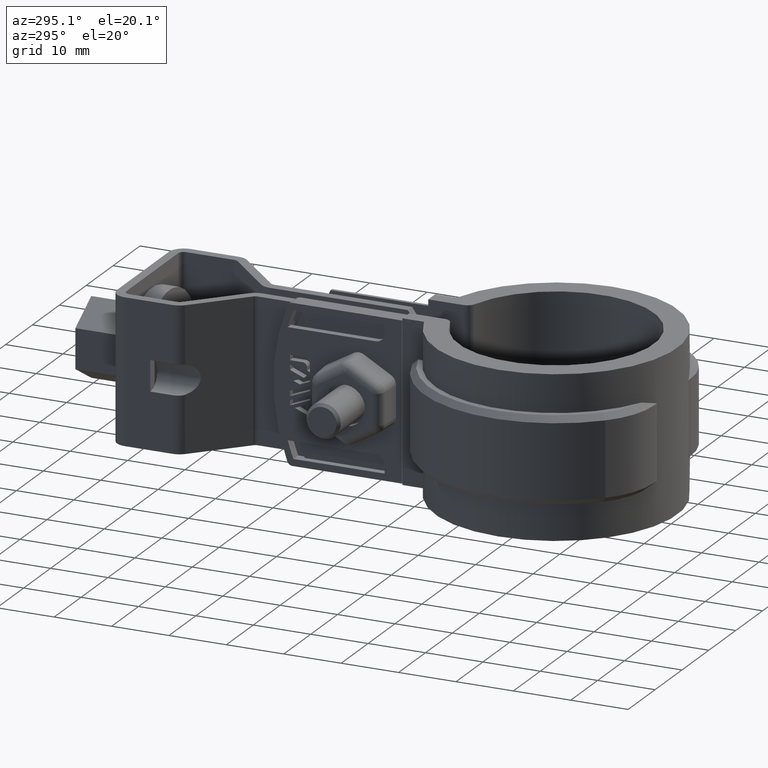
[diagram: clean part render]
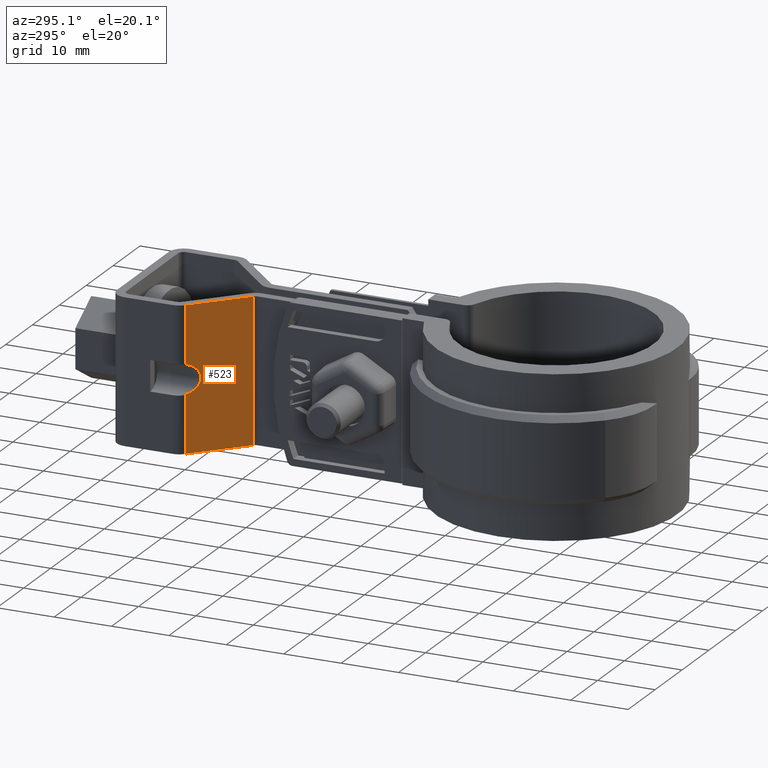
[diagram: same view with one face highlighted and labeled with its STEP entity id]
A machine part, auxiliary view. The second image highlights one B-rep face of the part: STEP entity #523.
In plain terms, the highlighted planar face has unit normal (-0.6983, -0.7158, -0).
Its self-contained STEP definition (entity closure, byte-faithful):
#523 = ADVANCED_FACE( '', ( #1030 ), #1031, .T. );
#1030 = FACE_OUTER_BOUND( '', #2123, .T. );
#1031 = PLANE( '', #2124 );
#2123 = EDGE_LOOP( '', ( #4726, #4727, #4728, #4729, #4730, #4731 ) );
#2124 = AXIS2_PLACEMENT_3D( '', #4732, #4733, #4734 );
#4726 = ORIENTED_EDGE( '', *, *, #6594, .F. );
#4727 = ORIENTED_EDGE( '', *, *, #6549, .T. );
#4728 = ORIENTED_EDGE( '', *, *, #6498, .T. );
#4729 = ORIENTED_EDGE( '', *, *, #6579, .T. );
#4730 = ORIENTED_EDGE( '', *, *, #6569, .F. );
#4731 = ORIENTED_EDGE( '', *, *, #6603, .T. );
#4732 = CARTESIAN_POINT( '', ( -3.90167536916138, 51.8596540135773, 2.00849276099646E-006 ) );
#4733 = DIRECTION( '', ( -0.698323840456956, -0.715781959712207, -1.16224225884510E-008 ) );
#4734 = DIRECTION( '', ( 0.715781959712207, -0.698323840456956, -1.19297453099727E-008 ) );
#6498 = EDGE_CURVE( '', #7682, #7680, #7683, .T. );
#6549 = EDGE_CURVE( '', #7763, #7682, #7766, .T. );
#6569 = EDGE_CURVE( '', #7800, #7801, #7802, .T. );
#6579 = EDGE_CURVE( '', #7680, #7801, #7816, .T. );
#6594 = EDGE_CURVE( '', #7763, #7837, #7838, .T. );
#6603 = EDGE_CURVE( '', #7800, #7837, #7851, .T. );
#7680 = VERTEX_POINT( '', #10905 );
#7682 = VERTEX_POINT( '', #10907 );
#7683 = LINE( '', #10908, #10909 );
#7763 = VERTEX_POINT( '', #11045 );
#7766 = LINE( '', #11049, #11050 );
#7800 = VERTEX_POINT( '', #11103 );
#7801 = VERTEX_POINT( '', #11104 );
#7802 = ELLIPSE( '', #11105, 3.70224472166266, 2.64999999999997 );
#7816 = LINE( '', #11140, #11141 );
#7837 = VERTEX_POINT( '', #11172 );
#7838 = LINE( '', #11173, #11174 );
#7851 = LINE( '', #11191, #11192 );
#10905 = CARTESIAN_POINT( '', ( -11.4656411262810, 59.2391325613748, 2.13455933484319E-006 ) );
#10907 = CARTESIAN_POINT( '', ( -3.30167537319022, 51.2742881828582, 1.99849271853569E-006 ) );
#10908 = CARTESIAN_POINT( '', ( -3.90167536916138, 51.8596540135773, 2.00849276099646E-006 ) );
#10909 = VECTOR( '', #12793, 1000.00000000000 );
#11045 = CARTESIAN_POINT( '', ( -3.30167538376227, 51.2742885991068, -24.9999980015073 ) );
#11049 = CARTESIAN_POINT( '', ( -3.30167537319022, 51.2742881828582, 1.99849270465791E-006 ) );
#11050 = VECTOR( '', #12870, 1000.00000000000 );
#11103 = CARTESIAN_POINT( '', ( -11.4656411326375, 59.2391328116445, -15.0312589117389 ) );
#11104 = CARTESIAN_POINT( '', ( -11.4656411304966, 59.2391327273538, -9.96873681914243 ) );
#11105 = AXIS2_PLACEMENT_3D( '', #12904, #12905, #12906 );
#11140 = CARTESIAN_POINT( '', ( -11.4656411262810, 59.2391325613748, 2.13455933484319E-006 ) );
#11141 = VECTOR( '', #12918, 1000.00000000000 );
#11172 = CARTESIAN_POINT( '', ( -11.4656411368531, 59.2391329776235, -24.9999978654407 ) );
#11173 = CARTESIAN_POINT( '', ( -3.90167537973343, 51.8596544298260, -24.9999979915072 ) );
#11174 = VECTOR( '', #12941, 1000.00000000000 );
#11191 = CARTESIAN_POINT( '', ( -11.4656411262810, 59.2391325613748, 2.13455933484319E-006 ) );
#11192 = VECTOR( '', #12958, 1000.00000000000 );
#12793 = DIRECTION( '', ( -0.715781959712207, 0.698323840456956, 1.19297453099727E-008 ) );
#12870 = DIRECTION( '', ( 4.22881760689292E-010, -1.66499460372352E-008, 1.00000000000000 ) );
#12904 = CARTESIAN_POINT( '', ( -12.2499991539209, 60.0043600835315, -12.4999978523680 ) );
#12905 = DIRECTION( '', ( -0.698323840456954, -0.715781959712209, -1.16224225533486E-008 ) );
#12906 = DIRECTION( '', ( -0.715781959712209, 0.698323840456954, 1.19297453459526E-008 ) );
#12918 = DIRECTION( '', ( -4.22881699458974E-010, 1.66499459774983E-008, -1.00000000000000 ) );
#12941 = DIRECTION( '', ( -0.715781959712207, 0.698323840456956, 1.19297453099727E-008 ) );
#12958 = DIRECTION( '', ( -4.22881699458974E-010, 1.66499459774983E-008, -1.00000000000000 ) );